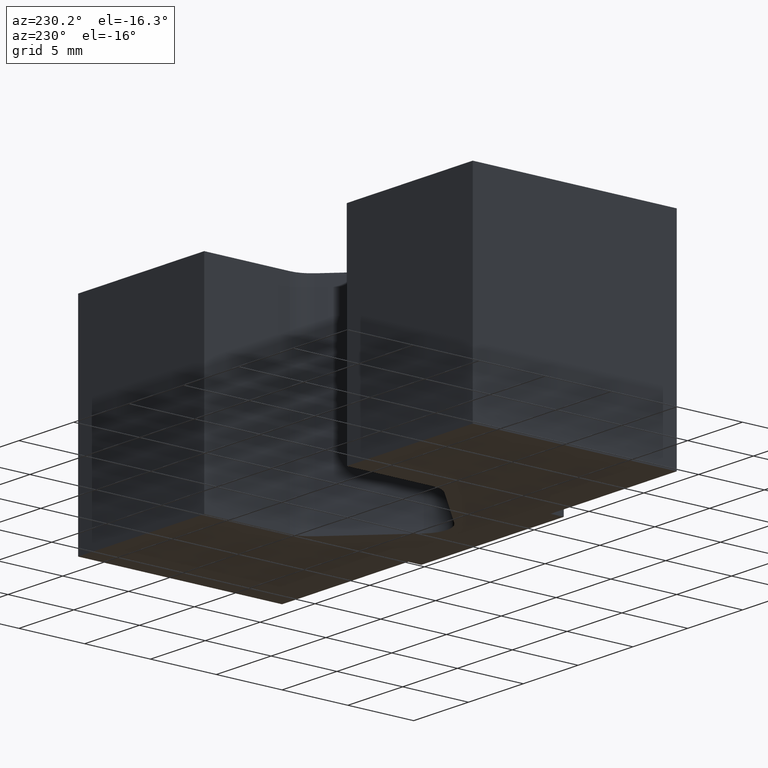
[diagram: clean part render]
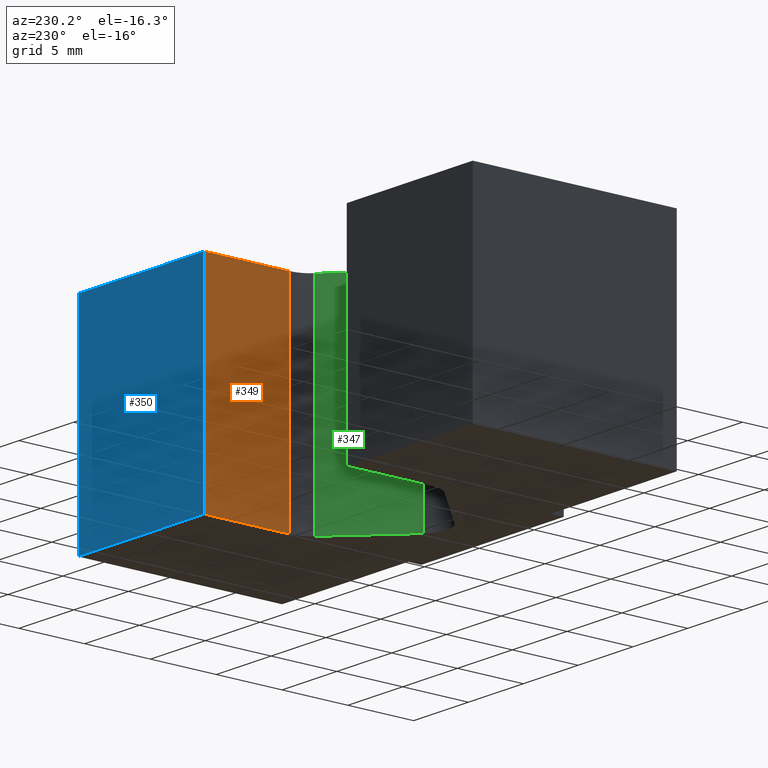
[diagram: same view with three faces highlighted in distinct colors, each labeled with its STEP entity id]
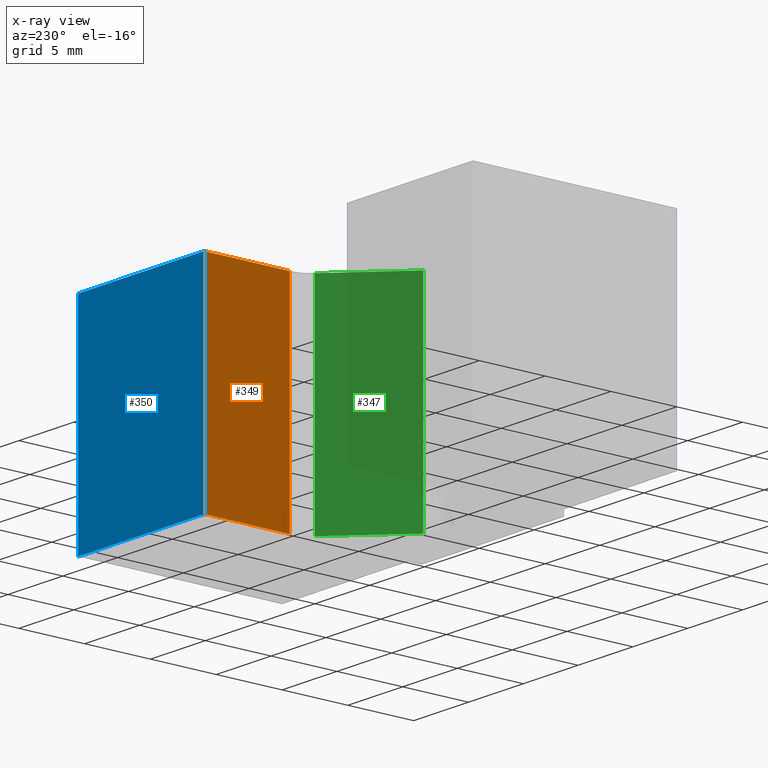
[diagram: x-ray of the same camera — body ghosted, the three highlighted faces saturated]
A machine part, auxiliary view with three faces highlighted in distinct colors.
The next image is the same camera in x-ray (body ghosted, the three faces saturated) — at least one of them is partly hidden behind the body in this view.
Their STEP definitions:

[orange] entity #349 — the highlighted planar face has unit normal (-1, 0, 0).
#32=FACE_OUTER_BOUND('',#50,.T.);
#50=EDGE_LOOP('',(#289,#290,#291,#292));
#72=LINE('',#525,#114);
#95=LINE('',#576,#137);
#96=LINE('',#579,#138);
#97=LINE('',#580,#139);
#114=VECTOR('',#422,10.);
#137=VECTOR('',#475,10.);
#138=VECTOR('',#478,10.);
#139=VECTOR('',#479,10.);
#159=VERTEX_POINT('',#522);
#160=VERTEX_POINT('',#524);
#173=VERTEX_POINT('',#574);
#174=VERTEX_POINT('',#578);
#191=EDGE_CURVE('',#160,#159,#72,.T.);
#217=EDGE_CURVE('',#173,#159,#95,.T.);
#218=EDGE_CURVE('',#173,#174,#96,.T.);
#219=EDGE_CURVE('',#174,#160,#97,.T.);
#289=ORIENTED_EDGE('',*,*,#218,.T.);
#290=ORIENTED_EDGE('',*,*,#219,.T.);
#291=ORIENTED_EDGE('',*,*,#191,.T.);
#292=ORIENTED_EDGE('',*,*,#217,.F.);
#331=PLANE('',#396);
#349=ADVANCED_FACE('',(#32),#331,.T.);
#396=AXIS2_PLACEMENT_3D('',#577,#476,#477);
#422=DIRECTION('',(0.,-1.,0.));
#475=DIRECTION('',(0.,0.,-1.));
#476=DIRECTION('center_axis',(-1.,0.,0.));
#477=DIRECTION('ref_axis',(0.,0.,1.));
#478=DIRECTION('',(0.,1.,0.));
#479=DIRECTION('',(0.,0.,-1.));
#522=CARTESIAN_POINT('',(6.5,9.,-8.));
#524=CARTESIAN_POINT('',(6.5,15.5,-8.));
#525=CARTESIAN_POINT('',(6.5,9.,-8.));
#574=CARTESIAN_POINT('',(6.5,9.,8.));
#576=CARTESIAN_POINT('',(6.5,9.,0.));
#577=CARTESIAN_POINT('Origin',(6.5,9.,0.));
#578=CARTESIAN_POINT('',(6.5,15.5,8.));
#579=CARTESIAN_POINT('',(6.5,9.,8.));
#580=CARTESIAN_POINT('',(6.5,15.5,0.));

[blue] entity #350 — the highlighted planar face has unit normal (0, 1, 0).
#33=FACE_OUTER_BOUND('',#51,.T.);
#51=EDGE_LOOP('',(#293,#294,#295,#296));
#73=LINE('',#526,#115);
#97=LINE('',#580,#139);
#98=LINE('',#583,#140);
#99=LINE('',#584,#141);
#115=VECTOR('',#423,10.);
#139=VECTOR('',#479,10.);
#140=VECTOR('',#482,10.);
#141=VECTOR('',#483,10.);
#146=VERTEX_POINT('',#496);
#160=VERTEX_POINT('',#524);
#174=VERTEX_POINT('',#578);
#175=VERTEX_POINT('',#582);
#192=EDGE_CURVE('',#146,#160,#73,.T.);
#219=EDGE_CURVE('',#174,#160,#97,.T.);
#220=EDGE_CURVE('',#174,#175,#98,.T.);
#221=EDGE_CURVE('',#175,#146,#99,.T.);
#293=ORIENTED_EDGE('',*,*,#220,.T.);
#294=ORIENTED_EDGE('',*,*,#221,.T.);
#295=ORIENTED_EDGE('',*,*,#192,.T.);
#296=ORIENTED_EDGE('',*,*,#219,.F.);
#332=PLANE('',#397);
#350=ADVANCED_FACE('',(#33),#332,.T.);
#397=AXIS2_PLACEMENT_3D('',#581,#480,#481);
#423=DIRECTION('',(-1.,0.,0.));
#479=DIRECTION('',(0.,0.,-1.));
#480=DIRECTION('center_axis',(0.,1.,0.));
#481=DIRECTION('ref_axis',(0.,0.,1.));
#482=DIRECTION('',(1.,0.,0.));
#483=DIRECTION('',(0.,0.,-1.));
#496=CARTESIAN_POINT('',(18.,15.5,-8.));
#524=CARTESIAN_POINT('',(6.5,15.5,-8.));
#526=CARTESIAN_POINT('',(6.5,15.5,-8.));
#578=CARTESIAN_POINT('',(6.5,15.5,8.));
#580=CARTESIAN_POINT('',(6.5,15.5,0.));
#581=CARTESIAN_POINT('Origin',(6.5,15.5,0.));
#582=CARTESIAN_POINT('',(18.,15.5,8.));
#583=CARTESIAN_POINT('',(6.5,15.5,8.));
#584=CARTESIAN_POINT('',(18.,15.5,0.));

[green] entity #347 — the highlighted planar face has unit normal (-0.7071, 0.7071, 0).
#30=FACE_OUTER_BOUND('',#48,.T.);
#48=EDGE_LOOP('',(#281,#282,#283,#284));
#71=LINE('',#521,#113);
#92=LINE('',#568,#134);
#93=LINE('',#571,#135);
#94=LINE('',#572,#136);
#113=VECTOR('',#419,10.);
#134=VECTOR('',#466,10.);
#135=VECTOR('',#469,10.);
#136=VECTOR('',#470,10.);
#157=VERTEX_POINT('',#518);
#158=VERTEX_POINT('',#520);
#171=VERTEX_POINT('',#566);
#172=VERTEX_POINT('',#570);
#189=EDGE_CURVE('',#158,#157,#71,.T.);
#213=EDGE_CURVE('',#171,#157,#92,.T.);
#214=EDGE_CURVE('',#171,#172,#93,.T.);
#215=EDGE_CURVE('',#172,#158,#94,.T.);
#281=ORIENTED_EDGE('',*,*,#214,.T.);
#282=ORIENTED_EDGE('',*,*,#215,.T.);
#283=ORIENTED_EDGE('',*,*,#189,.T.);
#284=ORIENTED_EDGE('',*,*,#213,.F.);
#330=PLANE('',#393);
#347=ADVANCED_FACE('',(#30),#330,.T.);
#393=AXIS2_PLACEMENT_3D('',#569,#467,#468);
#419=DIRECTION('',(-0.707106781186548,-0.707106781186547,0.));
#466=DIRECTION('',(0.,0.,-1.));
#467=DIRECTION('center_axis',(-0.707106781186547,0.707106781186548,0.));
#468=DIRECTION('ref_axis',(0.,0.,1.));
#469=DIRECTION('',(0.707106781186548,0.707106781186547,0.));
#470=DIRECTION('',(0.,0.,-1.));
#518=CARTESIAN_POINT('',(1.41421356237309,3.0857864376269,-8.));
#520=CARTESIAN_POINT('',(5.9142135623731,7.5857864376269,-8.));
#521=CARTESIAN_POINT('',(1.41421356237309,3.0857864376269,-8.));
#566=CARTESIAN_POINT('',(1.41421356237309,3.0857864376269,8.));
#568=CARTESIAN_POINT('',(1.41421356237309,3.0857864376269,0.));
#569=CARTESIAN_POINT('Origin',(1.41421356237309,3.0857864376269,0.));
#570=CARTESIAN_POINT('',(5.9142135623731,7.5857864376269,8.));
#571=CARTESIAN_POINT('',(1.41421356237309,3.0857864376269,8.));
#572=CARTESIAN_POINT('',(5.9142135623731,7.5857864376269,0.));